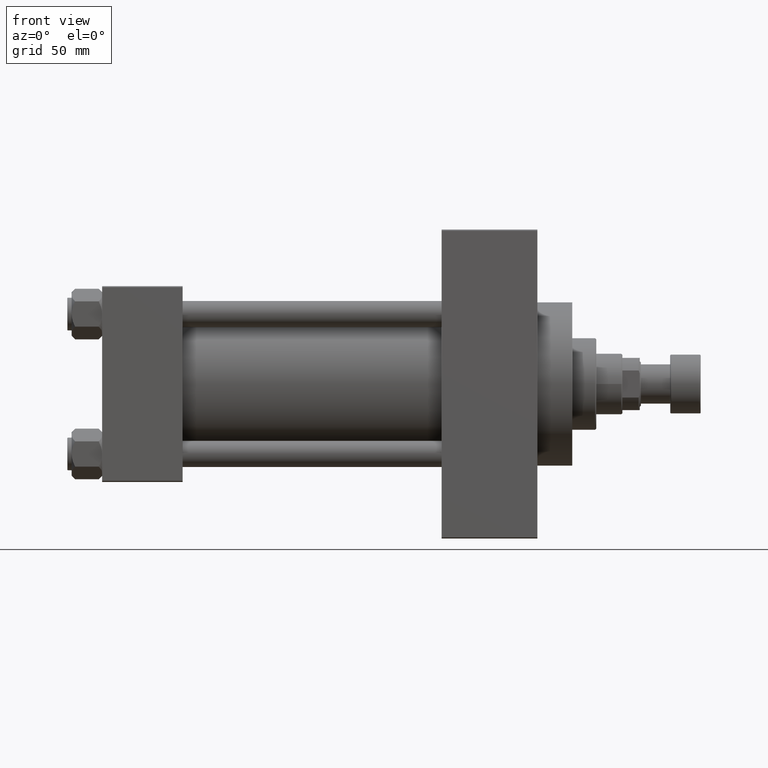
[diagram: clean part render]
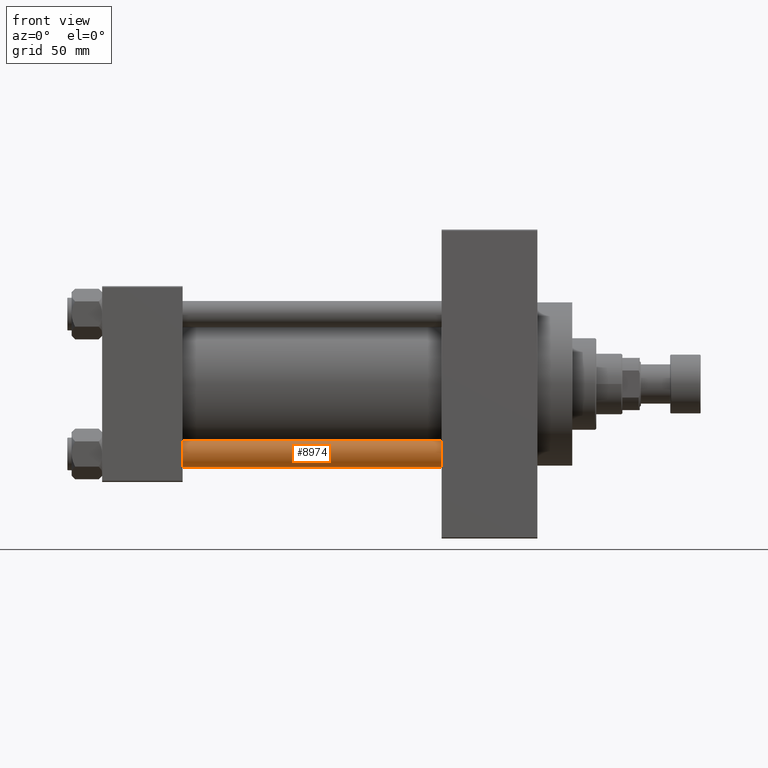
[diagram: same view with one face highlighted and labeled with its STEP entity id]
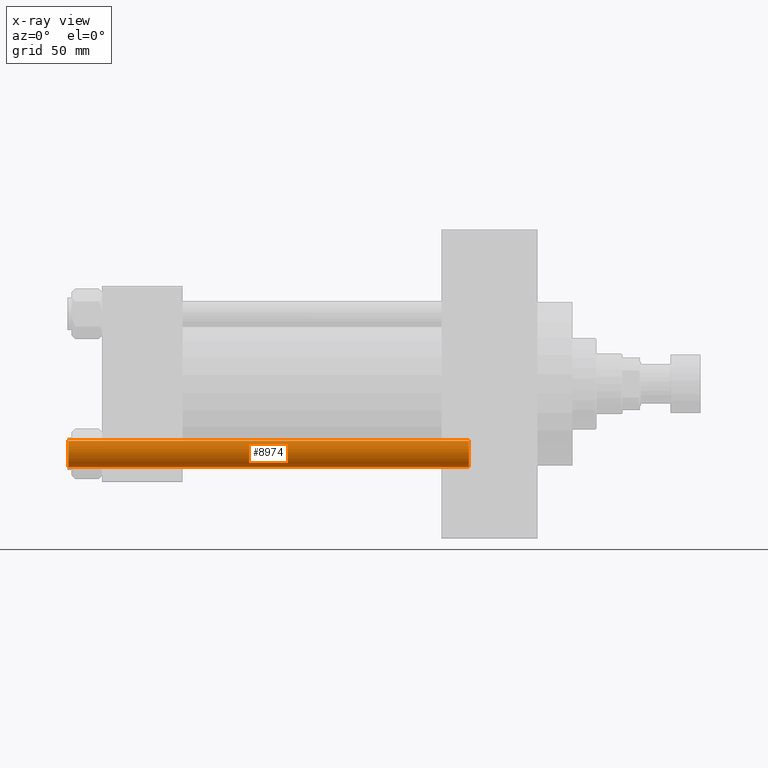
[diagram: x-ray of the same camera — body ghosted, the highlighted face saturated]
A machine part, front view. The second image highlights one B-rep face of the part: STEP entity #8974.
The next image is the same camera in x-ray: the body ghosted, the highlighted face saturated — about 0% of this face is hidden behind the body in this view.
In plain terms, the highlighted cylindrical surface (edge-blend (fillet) strip) has radius 6 mm, axis along (1, 0, 0).
Its self-contained STEP definition (entity closure, byte-faithful):
#311 = LINE ( 'NONE', #14996, #3968 ) ;
#2363 = AXIS2_PLACEMENT_3D ( 'NONE', #7781, #36285, #22502 ) ;
#3968 = VECTOR ( 'NONE', #44420, 1000.000000000000000 ) ;
#4687 = CYLINDRICAL_SURFACE ( 'NONE', #11472, 6.000000000000000888 ) ;
#5241 = VERTEX_POINT ( 'NONE', #37984 ) ;
#5512 = ORIENTED_EDGE ( 'NONE', *, *, #47337, .F. ) ;
#6467 = CARTESIAN_POINT ( 'NONE',  ( 6.000000000000000888, 7.347880794884120722E-16, 0.5000000000000281997 ) ) ;
#7659 = ORIENTED_EDGE ( 'NONE', *, *, #16695, .T. ) ;
#7781 = CARTESIAN_POINT ( 'NONE',  ( 0.000000000000000000, 0.000000000000000000, 0.5000000000000281997 ) ) ;
#8429 = EDGE_CURVE ( 'NONE', #10275, #16174, #12203, .T. ) ;
#8974 = ADVANCED_FACE ( 'NONE', ( #23493 ), #4687, .T. ) ;
#10154 = ORIENTED_EDGE ( 'NONE', *, *, #41130, .T. ) ;
#10275 = VERTEX_POINT ( 'NONE', #13890 ) ;
#10643 = LINE ( 'NONE', #29219, #46274 ) ;
#11472 = AXIS2_PLACEMENT_3D ( 'NONE', #34127, #44705, #19635 ) ;
#12203 = CIRCLE ( 'NONE', #40714, 6.000000000000000888 ) ;
#13890 = CARTESIAN_POINT ( 'NONE',  ( -6.000000000000000888, 0.000000000000000000, 184.5000000000000000 ) ) ;
#14996 = CARTESIAN_POINT ( 'NONE',  ( -6.000000000000000888, 0.000000000000000000, 185.0000000000000000 ) ) ;
#15318 = CARTESIAN_POINT ( 'NONE',  ( 6.000000000000000888, 7.347880794884120722E-16, 184.5000000000000000 ) ) ;
#16174 = VERTEX_POINT ( 'NONE', #15318 ) ;
#16695 = EDGE_CURVE ( 'NONE', #21299, #5241, #43944, .T. ) ;
#19635 = DIRECTION ( 'NONE',  ( -1.000000000000000000, 0.000000000000000000, 0.000000000000000000 ) ) ;
#21299 = VERTEX_POINT ( 'NONE', #6467 ) ;
#21612 = ORIENTED_EDGE ( 'NONE', *, *, #8429, .T. ) ;
#22502 = DIRECTION ( 'NONE',  ( 1.000000000000000000, 0.000000000000000000, 0.000000000000000000 ) ) ;
#23493 = FACE_OUTER_BOUND ( 'NONE', #37868, .T. ) ;
#29219 = CARTESIAN_POINT ( 'NONE',  ( 6.000000000000000888, 7.347880794884120722E-16, 185.0000000000000000 ) ) ;
#29948 = DIRECTION ( 'NONE',  ( 0.000000000000000000, 0.000000000000000000, -1.000000000000000000 ) ) ;
#34127 = CARTESIAN_POINT ( 'NONE',  ( 0.000000000000000000, 0.000000000000000000, 185.0000000000000000 ) ) ;
#36285 = DIRECTION ( 'NONE',  ( -0.000000000000000000, -0.000000000000000000, 1.000000000000000000 ) ) ;
#37868 = EDGE_LOOP ( 'NONE', ( #21612, #10154, #7659, #5512 ) ) ;
#37984 = CARTESIAN_POINT ( 'NONE',  ( -6.000000000000000888, 0.000000000000000000, 0.5000000000000281997 ) ) ;
#40714 = AXIS2_PLACEMENT_3D ( 'NONE', #40797, #29948, #44635 ) ;
#40797 = CARTESIAN_POINT ( 'NONE',  ( 0.000000000000000000, 0.000000000000000000, 184.5000000000000000 ) ) ;
#41130 = EDGE_CURVE ( 'NONE', #16174, #21299, #10643, .T. ) ;
#43944 = CIRCLE ( 'NONE', #2363, 6.000000000000000888 ) ;
#44420 = DIRECTION ( 'NONE',  ( -0.000000000000000000, -0.000000000000000000, -1.000000000000000000 ) ) ;
#44635 = DIRECTION ( 'NONE',  ( 1.000000000000000000, 0.000000000000000000, 0.000000000000000000 ) ) ;
#44705 = DIRECTION ( 'NONE',  ( -0.000000000000000000, -0.000000000000000000, -1.000000000000000000 ) ) ;
#46274 = VECTOR ( 'NONE', #47077, 1000.000000000000000 ) ;
#47077 = DIRECTION ( 'NONE',  ( -0.000000000000000000, -0.000000000000000000, -1.000000000000000000 ) ) ;
#47337 = EDGE_CURVE ( 'NONE', #10275, #5241, #311, .T. ) ;